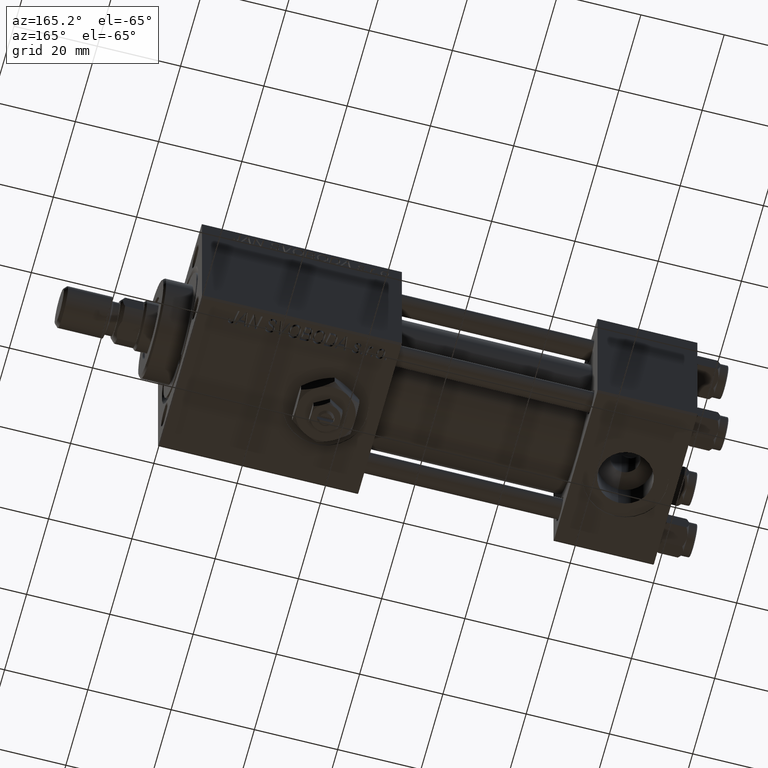
[diagram: clean part render]
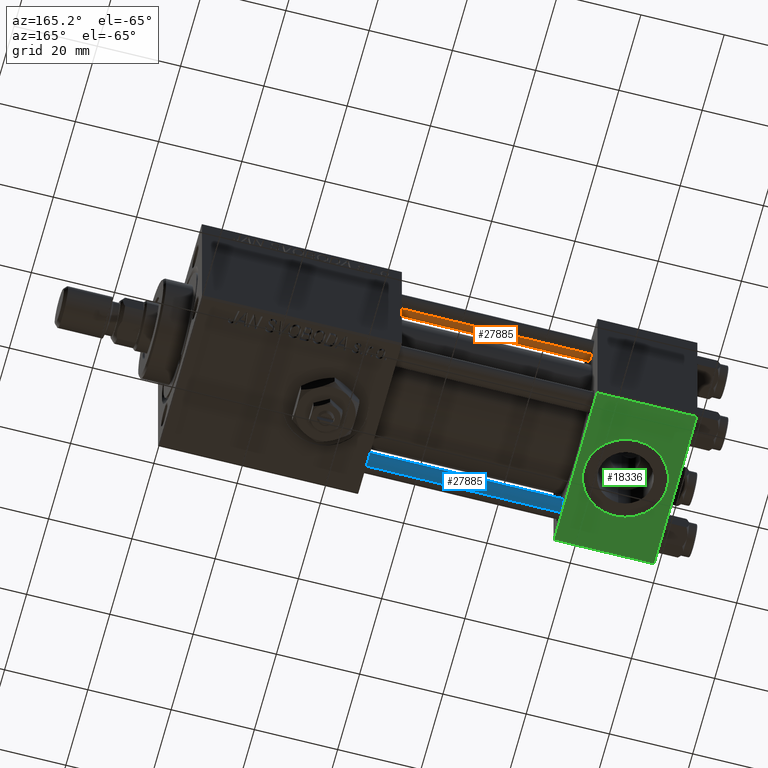
[diagram: same view with three faces highlighted in distinct colors, each labeled with its STEP entity id]
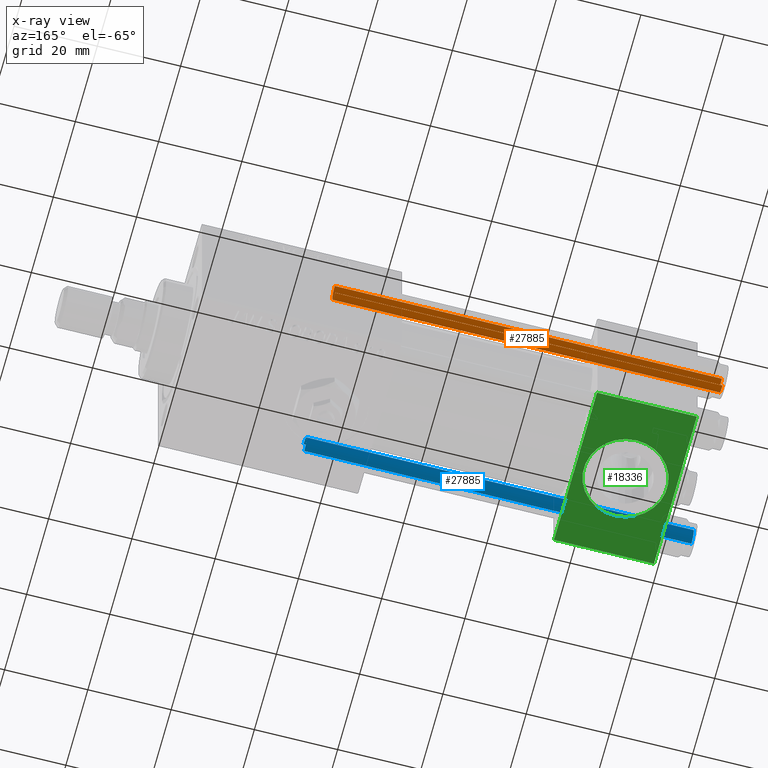
[diagram: x-ray of the same camera — body ghosted, the three highlighted faces saturated]
A machine part, auxiliary view with three faces highlighted in distinct colors.
The next image is the same camera in x-ray (body ghosted, the three faces saturated) — at least one of them is partly hidden behind the body in this view.
Their STEP definitions:

[orange] entity #27885 — the highlighted cylindrical surface (edge-blend (fillet) strip) has radius 2.5 mm, axis along (-1, 0, 0).
#324 = ORIENTED_EDGE ( 'NONE', *, *, #27638, .T. ) ;
#4666 = EDGE_CURVE ( 'NONE', #35484, #50797, #16641, .T. ) ;
#4935 = AXIS2_PLACEMENT_3D ( 'NONE', #19571, #10501, #39584 ) ;
#5795 = AXIS2_PLACEMENT_3D ( 'NONE', #46713, #38730, #27264 ) ;
#7141 = DIRECTION ( 'NONE',  ( -0.000000000000000000, -0.000000000000000000, -1.000000000000000000 ) ) ;
#7404 = CARTESIAN_POINT ( 'NONE',  ( -2.500000000000000000, 0.000000000000000000, 94.00000000000000000 ) ) ;
#8721 = VERTEX_POINT ( 'NONE', #20444 ) ;
#10501 = DIRECTION ( 'NONE',  ( 0.000000000000000000, 0.000000000000000000, -1.000000000000000000 ) ) ;
#11723 = CIRCLE ( 'NONE', #4935, 2.500000000000000000 ) ;
#13385 = DIRECTION ( 'NONE',  ( -0.000000000000000000, -0.000000000000000000, -1.000000000000000000 ) ) ;
#14618 = VECTOR ( 'NONE', #7141, 1000.000000000000000 ) ;
#14896 = LINE ( 'NONE', #7404, #14618 ) ;
#16641 = CIRCLE ( 'NONE', #44733, 2.500000000000000000 ) ;
#17231 = DIRECTION ( 'NONE',  ( 1.000000000000000000, 0.000000000000000000, 0.000000000000000000 ) ) ;
#17396 = LINE ( 'NONE', #25686, #22085 ) ;
#18836 = ORIENTED_EDGE ( 'NONE', *, *, #40208, .T. ) ;
#19571 = CARTESIAN_POINT ( 'NONE',  ( 0.000000000000000000, 0.000000000000000000, 93.50000000000001421 ) ) ;
#20444 = CARTESIAN_POINT ( 'NONE',  ( -2.500000000000000000, 0.000000000000000000, 93.50000000000001421 ) ) ;
#20598 = EDGE_LOOP ( 'NONE', ( #26093, #324, #18836, #30632 ) ) ;
#21724 = CARTESIAN_POINT ( 'NONE',  ( -2.500000000000000000, 0.000000000000000000, 0.5000000000000004441 ) ) ;
#22085 = VECTOR ( 'NONE', #13385, 1000.000000000000000 ) ;
#23301 = CARTESIAN_POINT ( 'NONE',  ( 2.500000000000000000, 3.061616997868383141E-16, 93.50000000000001421 ) ) ;
#23504 = CYLINDRICAL_SURFACE ( 'NONE', #5795, 2.500000000000000000 ) ;
#25686 = CARTESIAN_POINT ( 'NONE',  ( 2.500000000000000000, 3.061616997868383141E-16, 94.00000000000000000 ) ) ;
#26093 = ORIENTED_EDGE ( 'NONE', *, *, #52135, .F. ) ;
#27264 = DIRECTION ( 'NONE',  ( -1.000000000000000000, 0.000000000000000000, 0.000000000000000000 ) ) ;
#27638 = EDGE_CURVE ( 'NONE', #43488, #8721, #11723, .T. ) ;
#27885 = ADVANCED_FACE ( 'NONE', ( #51238 ), #23504, .T. ) ;
#30632 = ORIENTED_EDGE ( 'NONE', *, *, #4666, .T. ) ;
#33523 = DIRECTION ( 'NONE',  ( -0.000000000000000000, -0.000000000000000000, 1.000000000000000000 ) ) ;
#35484 = VERTEX_POINT ( 'NONE', #21724 ) ;
#38562 = CARTESIAN_POINT ( 'NONE',  ( 0.000000000000000000, 0.000000000000000000, 0.5000000000000004441 ) ) ;
#38730 = DIRECTION ( 'NONE',  ( -0.000000000000000000, -0.000000000000000000, -1.000000000000000000 ) ) ;
#39584 = DIRECTION ( 'NONE',  ( 1.000000000000000000, 0.000000000000000000, 0.000000000000000000 ) ) ;
#40208 = EDGE_CURVE ( 'NONE', #8721, #35484, #14896, .T. ) ;
#43488 = VERTEX_POINT ( 'NONE', #23301 ) ;
#44733 = AXIS2_PLACEMENT_3D ( 'NONE', #38562, #33523, #17231 ) ;
#46713 = CARTESIAN_POINT ( 'NONE',  ( 0.000000000000000000, 0.000000000000000000, 94.00000000000000000 ) ) ;
#50749 = CARTESIAN_POINT ( 'NONE',  ( 2.500000000000000000, 3.061616997868383141E-16, 0.5000000000000004441 ) ) ;
#50797 = VERTEX_POINT ( 'NONE', #50749 ) ;
#51238 = FACE_OUTER_BOUND ( 'NONE', #20598, .T. ) ;
#52135 = EDGE_CURVE ( 'NONE', #43488, #50797, #17396, .T. ) ;

[blue] entity #27885 — the highlighted cylindrical surface (edge-blend (fillet) strip) has radius 2.5 mm, axis along (-1, -0, -0).
#324 = ORIENTED_EDGE ( 'NONE', *, *, #27638, .T. ) ;
#4666 = EDGE_CURVE ( 'NONE', #35484, #50797, #16641, .T. ) ;
#4935 = AXIS2_PLACEMENT_3D ( 'NONE', #19571, #10501, #39584 ) ;
#5795 = AXIS2_PLACEMENT_3D ( 'NONE', #46713, #38730, #27264 ) ;
#7141 = DIRECTION ( 'NONE',  ( -0.000000000000000000, -0.000000000000000000, -1.000000000000000000 ) ) ;
#7404 = CARTESIAN_POINT ( 'NONE',  ( -2.500000000000000000, 0.000000000000000000, 94.00000000000000000 ) ) ;
#8721 = VERTEX_POINT ( 'NONE', #20444 ) ;
#10501 = DIRECTION ( 'NONE',  ( 0.000000000000000000, 0.000000000000000000, -1.000000000000000000 ) ) ;
#11723 = CIRCLE ( 'NONE', #4935, 2.500000000000000000 ) ;
#13385 = DIRECTION ( 'NONE',  ( -0.000000000000000000, -0.000000000000000000, -1.000000000000000000 ) ) ;
#14618 = VECTOR ( 'NONE', #7141, 1000.000000000000000 ) ;
#14896 = LINE ( 'NONE', #7404, #14618 ) ;
#16641 = CIRCLE ( 'NONE', #44733, 2.500000000000000000 ) ;
#17231 = DIRECTION ( 'NONE',  ( 1.000000000000000000, 0.000000000000000000, 0.000000000000000000 ) ) ;
#17396 = LINE ( 'NONE', #25686, #22085 ) ;
#18836 = ORIENTED_EDGE ( 'NONE', *, *, #40208, .T. ) ;
#19571 = CARTESIAN_POINT ( 'NONE',  ( 0.000000000000000000, 0.000000000000000000, 93.50000000000001421 ) ) ;
#20444 = CARTESIAN_POINT ( 'NONE',  ( -2.500000000000000000, 0.000000000000000000, 93.50000000000001421 ) ) ;
#20598 = EDGE_LOOP ( 'NONE', ( #26093, #324, #18836, #30632 ) ) ;
#21724 = CARTESIAN_POINT ( 'NONE',  ( -2.500000000000000000, 0.000000000000000000, 0.5000000000000004441 ) ) ;
#22085 = VECTOR ( 'NONE', #13385, 1000.000000000000000 ) ;
#23301 = CARTESIAN_POINT ( 'NONE',  ( 2.500000000000000000, 3.061616997868383141E-16, 93.50000000000001421 ) ) ;
#23504 = CYLINDRICAL_SURFACE ( 'NONE', #5795, 2.500000000000000000 ) ;
#25686 = CARTESIAN_POINT ( 'NONE',  ( 2.500000000000000000, 3.061616997868383141E-16, 94.00000000000000000 ) ) ;
#26093 = ORIENTED_EDGE ( 'NONE', *, *, #52135, .F. ) ;
#27264 = DIRECTION ( 'NONE',  ( -1.000000000000000000, 0.000000000000000000, 0.000000000000000000 ) ) ;
#27638 = EDGE_CURVE ( 'NONE', #43488, #8721, #11723, .T. ) ;
#27885 = ADVANCED_FACE ( 'NONE', ( #51238 ), #23504, .T. ) ;
#30632 = ORIENTED_EDGE ( 'NONE', *, *, #4666, .T. ) ;
#33523 = DIRECTION ( 'NONE',  ( -0.000000000000000000, -0.000000000000000000, 1.000000000000000000 ) ) ;
#35484 = VERTEX_POINT ( 'NONE', #21724 ) ;
#38562 = CARTESIAN_POINT ( 'NONE',  ( 0.000000000000000000, 0.000000000000000000, 0.5000000000000004441 ) ) ;
#38730 = DIRECTION ( 'NONE',  ( -0.000000000000000000, -0.000000000000000000, -1.000000000000000000 ) ) ;
#39584 = DIRECTION ( 'NONE',  ( 1.000000000000000000, 0.000000000000000000, 0.000000000000000000 ) ) ;
#40208 = EDGE_CURVE ( 'NONE', #8721, #35484, #14896, .T. ) ;
#43488 = VERTEX_POINT ( 'NONE', #23301 ) ;
#44733 = AXIS2_PLACEMENT_3D ( 'NONE', #38562, #33523, #17231 ) ;
#46713 = CARTESIAN_POINT ( 'NONE',  ( 0.000000000000000000, 0.000000000000000000, 94.00000000000000000 ) ) ;
#50749 = CARTESIAN_POINT ( 'NONE',  ( 2.500000000000000000, 3.061616997868383141E-16, 0.5000000000000004441 ) ) ;
#50797 = VERTEX_POINT ( 'NONE', #50749 ) ;
#51238 = FACE_OUTER_BOUND ( 'NONE', #20598, .T. ) ;
#52135 = EDGE_CURVE ( 'NONE', #43488, #50797, #17396, .T. ) ;

[green] entity #18336 — the highlighted planar face has unit normal (0, -0, -1).
#1056 = VERTEX_POINT ( 'NONE', #7951 ) ;
#1624 = DIRECTION ( 'NONE',  ( 0.000000000000000000, 1.000000000000000000, 0.000000000000000000 ) ) ;
#1981 = CIRCLE ( 'NONE', #16485, 10.00000000000000178 ) ;
#2357 = ORIENTED_EDGE ( 'NONE', *, *, #19694, .T. ) ;
#3401 = DIRECTION ( 'NONE',  ( -1.000000000000000000, 0.000000000000000000, 0.000000000000000000 ) ) ;
#5072 = AXIS2_PLACEMENT_3D ( 'NONE', #32553, #40025, #20264 ) ;
#5202 = VERTEX_POINT ( 'NONE', #21810 ) ;
#5424 = EDGE_CURVE ( 'NONE', #27616, #19133, #43861, .T. ) ;
#6752 = DIRECTION ( 'NONE',  ( 0.000000000000000000, 1.000000000000000000, 0.000000000000000000 ) ) ;
#7307 = CARTESIAN_POINT ( 'NONE',  ( 0.000000000000000000, 20.00000000000000000, -20.00000000000000711 ) ) ;
#7456 = FACE_OUTER_BOUND ( 'NONE', #11001, .T. ) ;
#7951 = CARTESIAN_POINT ( 'NONE',  ( 12.00000000000000178, -10.00000000000000711, -20.00000000000000355 ) ) ;
#11001 = EDGE_LOOP ( 'NONE', ( #17665, #38297, #39634, #2357 ) ) ;
#12137 = EDGE_CURVE ( 'NONE', #42686, #5202, #34770, .T. ) ;
#12205 = CARTESIAN_POINT ( 'NONE',  ( 0.000000000000000000, -19.50000000000000711, -20.00000000000000000 ) ) ;
#13038 = CARTESIAN_POINT ( 'NONE',  ( 12.00000000000000000, 9.999999999999996447, -20.00000000000000355 ) ) ;
#13420 = CARTESIAN_POINT ( 'NONE',  ( 24.00000000000000000, 20.00000000000000000, -20.00000000000000711 ) ) ;
#14190 = EDGE_CURVE ( 'NONE', #1056, #49213, #30627, .T. ) ;
#14244 = CARTESIAN_POINT ( 'NONE',  ( 12.00000000000000000, -4.939023110930437544E-15, -20.00000000000000355 ) ) ;
#14693 = DIRECTION ( 'NONE',  ( 0.000000000000000000, -1.734723475976806848E-16, -1.000000000000000000 ) ) ;
#15490 = DIRECTION ( 'NONE',  ( 1.000000000000000000, 0.000000000000000000, 0.000000000000000000 ) ) ;
#16409 = CARTESIAN_POINT ( 'NONE',  ( 0.000000000000000000, -19.50000000000000711, -20.00000000000000000 ) ) ;
#16485 = AXIS2_PLACEMENT_3D ( 'NONE', #14244, #34537, #6752 ) ;
#17665 = ORIENTED_EDGE ( 'NONE', *, *, #5424, .F. ) ;
#17750 = ORIENTED_EDGE ( 'NONE', *, *, #14190, .F. ) ;
#18336 = ADVANCED_FACE ( 'NONE', ( #24273, #7456 ), #23749, .T. ) ;
#18569 = AXIS2_PLACEMENT_3D ( 'NONE', #38187, #14693, #1624 ) ;
#19133 = VERTEX_POINT ( 'NONE', #16409 ) ;
#19694 = EDGE_CURVE ( 'NONE', #5202, #19133, #51426, .T. ) ;
#20264 = DIRECTION ( 'NONE',  ( 0.000000000000000000, 1.000000000000000000, -1.734723475976806848E-16 ) ) ;
#21810 = CARTESIAN_POINT ( 'NONE',  ( 24.00000000000000000, -19.50000000000000711, -20.00000000000000000 ) ) ;
#21949 = DIRECTION ( 'NONE',  ( 0.000000000000000000, -1.000000000000000000, 1.734723475976807094E-16 ) ) ;
#23749 = PLANE ( 'NONE',  #5072 ) ;
#24273 = FACE_BOUND ( 'NONE', #46585, .T. ) ;
#24283 = CARTESIAN_POINT ( 'NONE',  ( 24.00000000000000000, 19.50000000000000711, -20.00000000000000711 ) ) ;
#27165 = VECTOR ( 'NONE', #21949, 1000.000000000000000 ) ;
#27616 = VERTEX_POINT ( 'NONE', #27855 ) ;
#27855 = CARTESIAN_POINT ( 'NONE',  ( 0.000000000000000000, 19.50000000000000711, -20.00000000000000711 ) ) ;
#30627 = CIRCLE ( 'NONE', #18569, 10.00000000000000178 ) ;
#31248 = LINE ( 'NONE', #46973, #43401 ) ;
#32026 = VECTOR ( 'NONE', #51335, 1000.000000000000000 ) ;
#32553 = CARTESIAN_POINT ( 'NONE',  ( 24.00000000000000000, 20.00000000000000000, -20.00000000000000711 ) ) ;
#34537 = DIRECTION ( 'NONE',  ( 0.000000000000000000, -1.734723475976806848E-16, -1.000000000000000000 ) ) ;
#34685 = EDGE_CURVE ( 'NONE', #27616, #42686, #31248, .T. ) ;
#34770 = LINE ( 'NONE', #13420, #27165 ) ;
#38187 = CARTESIAN_POINT ( 'NONE',  ( 12.00000000000000000, -4.939023110930437544E-15, -20.00000000000000355 ) ) ;
#38297 = ORIENTED_EDGE ( 'NONE', *, *, #34685, .T. ) ;
#39634 = ORIENTED_EDGE ( 'NONE', *, *, #12137, .T. ) ;
#40025 = DIRECTION ( 'NONE',  ( 0.000000000000000000, -1.734723475976806848E-16, -1.000000000000000000 ) ) ;
#42686 = VERTEX_POINT ( 'NONE', #24283 ) ;
#43401 = VECTOR ( 'NONE', #15490, 1000.000000000000000 ) ;
#43861 = LINE ( 'NONE', #7307, #32026 ) ;
#44176 = EDGE_CURVE ( 'NONE', #49213, #1056, #1981, .T. ) ;
#44592 = ORIENTED_EDGE ( 'NONE', *, *, #44176, .F. ) ;
#46585 = EDGE_LOOP ( 'NONE', ( #44592, #17750 ) ) ;
#46973 = CARTESIAN_POINT ( 'NONE',  ( 24.00000000000000000, 19.50000000000000711, -20.00000000000000711 ) ) ;
#49213 = VERTEX_POINT ( 'NONE', #13038 ) ;
#49370 = VECTOR ( 'NONE', #3401, 1000.000000000000000 ) ;
#51335 = DIRECTION ( 'NONE',  ( 0.000000000000000000, -1.000000000000000000, 1.734723475976807094E-16 ) ) ;
#51426 = LINE ( 'NONE', #12205, #49370 ) ;